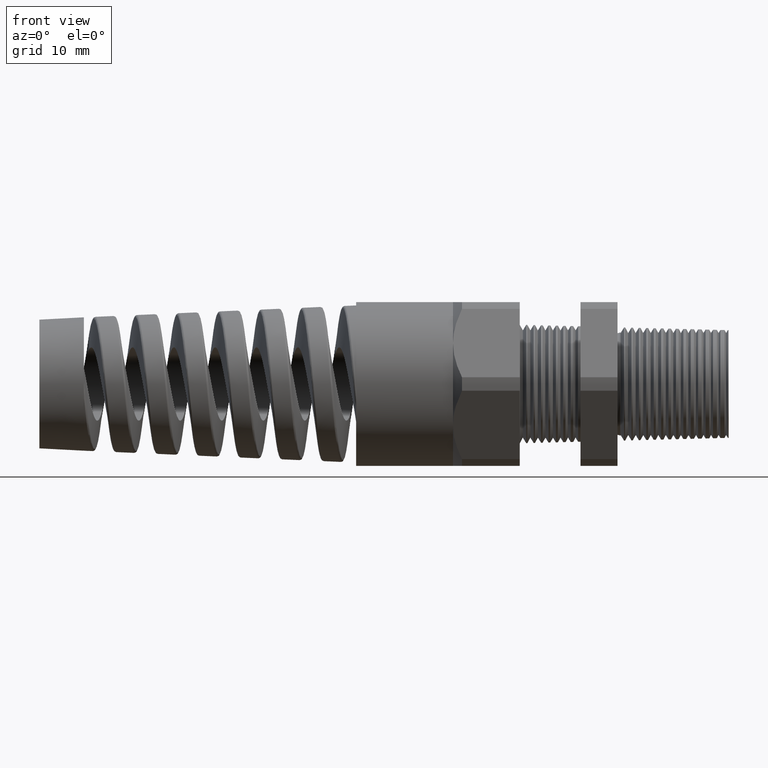
[diagram: clean part render]
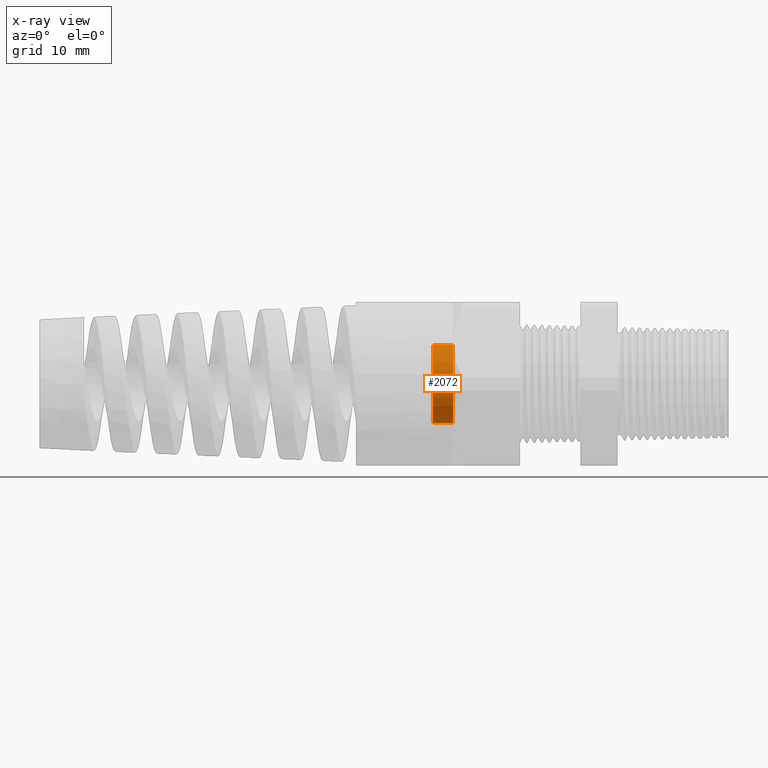
[diagram: x-ray — body ghosted, one internal face saturated and labeled with its STEP entity id]
A machine part, front view, then the same camera in x-ray: the body is ghosted and one INTERNAL B-rep face — a face not visible from any outside direction — is saturated and labeled: STEP entity #2072.
In plain terms, the highlighted cylindrical surface (partial cylindrical patch) has radius 5.2674 mm, axis along (1, -0, -0).
Its self-contained STEP definition (entity closure, byte-faithful):
#2072 = ADVANCED_FACE ( 'NONE', ( #12523 ), #12521, .F. ) ;
#2073 = EDGE_LOOP ( 'NONE', ( #2075, #2121, #2141, #2124 ) ) ;
#2075 = ORIENTED_EDGE ( 'NONE', *, *, #2076, .T. ) ;
#2076 = EDGE_CURVE ( 'NONE', #2079, #2078, #12513, .T. ) ;
#2078 = VERTEX_POINT ( 'NONE', #12508 ) ;
#2079 = VERTEX_POINT ( 'NONE', #12507 ) ;
#2121 = ORIENTED_EDGE ( 'NONE', *, *, #2122, .T. ) ;
#2122 = EDGE_CURVE ( 'NONE', #2078, #2123, #12605, .T. ) ;
#2123 = VERTEX_POINT ( 'NONE', #12601 ) ;
#2124 = ORIENTED_EDGE ( 'NONE', *, *, #2129, .F. ) ;
#2129 = EDGE_CURVE ( 'NONE', #2079, #2135, #12657, .T. ) ;
#2135 = VERTEX_POINT ( 'NONE', #12670 ) ;
#2141 = ORIENTED_EDGE ( 'NONE', *, *, #2142, .T. ) ;
#2142 = EDGE_CURVE ( 'NONE', #2123, #2135, #12663, .T. ) ;
#12507 = CARTESIAN_POINT ( 'NONE',  ( -1.289999999999999600, 0.0000000000000000000, -0.2073797903814007000 ) ) ;
#12508 = CARTESIAN_POINT ( 'NONE',  ( -1.289999999999999600, 2.539669964984313600E-017, 0.2073797903814007000 ) ) ;
#12509 = DIRECTION ( 'NONE',  ( 0.0000000000000000000, 0.0000000000000000000, -1.000000000000000000 ) ) ;
#12510 = DIRECTION ( 'NONE',  ( -1.000000000000000000, 0.0000000000000000000, 0.0000000000000000000 ) ) ;
#12511 = CARTESIAN_POINT ( 'NONE',  ( -1.289999999999999600, 0.0000000000000000000, 0.0000000000000000000 ) ) ;
#12512 = AXIS2_PLACEMENT_3D ( 'NONE', #12511, #12510, #12509 ) ;
#12513 = CIRCLE ( 'NONE', #12512, 0.2073797903814007000 ) ;
#12518 = DIRECTION ( 'NONE',  ( 0.0000000000000000000, 0.0000000000000000000, -1.000000000000000000 ) ) ;
#12519 = DIRECTION ( 'NONE',  ( 1.000000000000000000, -0.0000000000000000000, -0.0000000000000000000 ) ) ;
#12520 = AXIS2_PLACEMENT_3D ( 'NONE', #12522, #12519, #12518 ) ;
#12521 = CYLINDRICAL_SURFACE ( 'NONE', #12520, 0.2073797903814007000 ) ;
#12522 = CARTESIAN_POINT ( 'NONE',  ( -1.697947509874504500, 0.0000000000000000000, 0.0000000000000000000 ) ) ;
#12523 = FACE_OUTER_BOUND ( 'NONE', #2073, .T. ) ;
#12601 = CARTESIAN_POINT ( 'NONE',  ( -1.183700787401574600, 2.539669964984313600E-017, 0.2073797903814007000 ) ) ;
#12602 = DIRECTION ( 'NONE',  ( 1.000000000000000000, -0.0000000000000000000, -0.0000000000000000000 ) ) ;
#12603 = VECTOR ( 'NONE', #12602, 39.37007874015748100 ) ;
#12604 = CARTESIAN_POINT ( 'NONE',  ( -1.697947509874504500, 2.539669964984313600E-017, 0.2073797903814007000 ) ) ;
#12605 = LINE ( 'NONE', #12604, #12603 ) ;
#12654 = DIRECTION ( 'NONE',  ( 1.000000000000000000, -0.0000000000000000000, -0.0000000000000000000 ) ) ;
#12655 = VECTOR ( 'NONE', #12654, 39.37007874015748100 ) ;
#12656 = CARTESIAN_POINT ( 'NONE',  ( -1.697947509874504500, 0.0000000000000000000, -0.2073797903814007000 ) ) ;
#12657 = LINE ( 'NONE', #12656, #12655 ) ;
#12662 = AXIS2_PLACEMENT_3D ( 'NONE', #12735, #12734, #12733 ) ;
#12663 = CIRCLE ( 'NONE', #12662, 0.2073797903814007000 ) ;
#12670 = CARTESIAN_POINT ( 'NONE',  ( -1.183700787401574600, 0.0000000000000000000, -0.2073797903814007000 ) ) ;
#12733 = DIRECTION ( 'NONE',  ( 0.0000000000000000000, 0.0000000000000000000, 1.000000000000000000 ) ) ;
#12734 = DIRECTION ( 'NONE',  ( 1.000000000000000000, -0.0000000000000000000, -0.0000000000000000000 ) ) ;
#12735 = CARTESIAN_POINT ( 'NONE',  ( -1.183700787401574600, 0.0000000000000000000, 0.0000000000000000000 ) ) ;